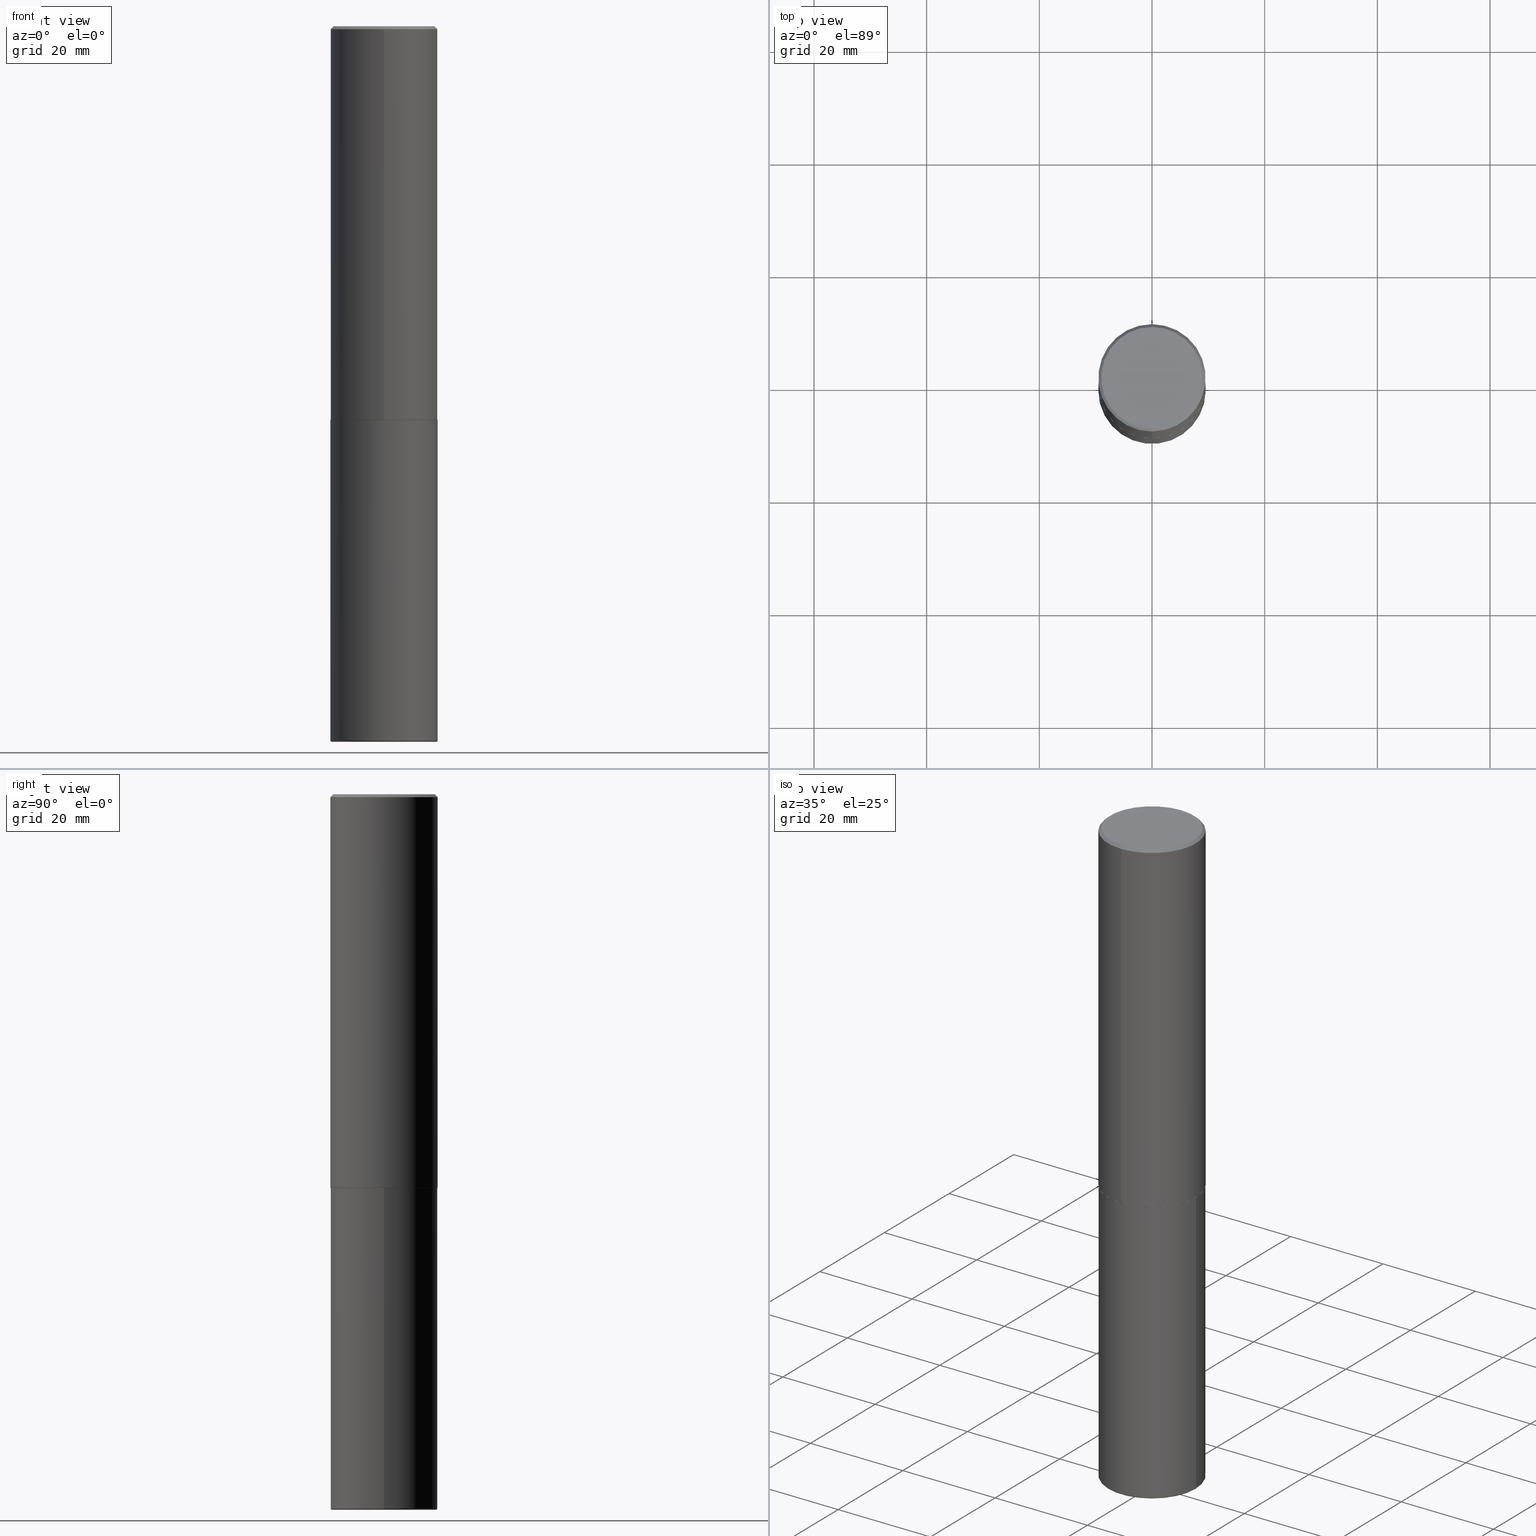
[diagram: canonical four-view strip — front | top / right | iso, engineering-drawing reading convention]
A machine part, canonical four-view strip (front | top / right | iso — engineering-drawing reading convention). The complete STEP part file that produces these views, byte-faithful:
ISO-10303-21;
HEADER;
FILE_DESCRIPTION (( 'STEP AP203' ),
    '1' );
FILE_NAME ('37639.STEP',
    '2024-03-02T06:34:33',
    ( '' ),
    ( '' ),
    'SwSTEP 2.0',
    'SolidWorks 2023',
    '' );
FILE_SCHEMA (( 'CONFIG_CONTROL_DESIGN' ));
ENDSEC;

DATA;
#1 = DIRECTION ( 'NONE',  ( -6.982962677686266711E-15, -1.000000000000000000, 3.490662795793665951E-15 ) ) ;
#2 = EDGE_LOOP ( 'NONE', ( #418, #225, #74, #356 ) ) ;
#3 = CIRCLE ( 'NONE', #283, 0.3549999999999999822 ) ;
#4 = CONICAL_SURFACE ( 'NONE', #95, 0.3739999999999999991, 0.7853981633977213939 ) ;
#5 = EDGE_LOOP ( 'NONE', ( #57, #343 ) ) ;
#6 = EDGE_LOOP ( 'NONE', ( #91, #151 ) ) ;
#7 = DIRECTION ( 'NONE',  ( -6.982962677686266711E-15, -1.000000000000000000, 2.921762560068730595E-15 ) ) ;
#8 = DIRECTION ( 'NONE',  ( -2.446040391741596045E-29, 3.490662795793665557E-15, 1.000000000000000000 ) ) ;
#9 = AXIS2_PLACEMENT_3D ( 'NONE', #332, #124, #162 ) ;
#10 = DIRECTION ( 'NONE',  ( -2.446040391741596606E-29, 3.490662795793665557E-15, 1.000000000000000000 ) ) ;
#11 = PLANE ( 'NONE',  #213 ) ;
#12 = CALENDAR_DATE ( 2024, 2, 3 ) ;
#13 = FACE_OUTER_BOUND ( 'NONE', #19, .T. ) ;
#14 = APPROVAL_ROLE ( '' ) ;
#15 = CIRCLE ( 'NONE', #93, 0.3750000000000000555 ) ;
#16 = DATE_AND_TIME ( #268, #250 ) ;
#17 = CC_DESIGN_APPROVAL ( #149, ( #256 ) ) ;
#18 = DIRECTION ( 'NONE',  ( -1.000000000000000000, 6.982962677686265922E-15, -4.876176775795935793E-29 ) ) ;
#19 = EDGE_LOOP ( 'NONE', ( #94, #210 ) ) ;
#20 = CIRCLE ( 'NONE', #370, 0.3549999999999999822 ) ;
#21 = CARTESIAN_POINT ( 'NONE',  ( 2.660982545421643429E-15, 0.3739999999999903957, -2.750000000000000888 ) ) ;
#22 = EDGE_CURVE ( 'NONE', #230, #90, #3, .T. ) ;
#23 = CARTESIAN_POINT ( 'NONE',  ( -2.504081769186608216E-15, -0.3549999999999999822, 1.285848347115290366E-15 ) ) ;
#24 = DIRECTION ( 'NONE',  ( 6.982962677686265922E-15, 1.000000000000000000, -3.494488891895536035E-15 ) ) ;
#25 = AXIS2_PLACEMENT_3D ( 'NONE', #413, #54, #381 ) ;
#26 = EDGE_LOOP ( 'NONE', ( #187, #192, #321, #111 ) ) ;
#27 = CARTESIAN_POINT ( 'NONE',  ( -0.3650000000000000466, -1.482901089530292947E-14, -4.990000000000000213 ) ) ;
#28 = VERTEX_POINT ( 'NONE', #37 ) ;
#29 = DIRECTION ( 'NONE',  ( -2.445468806185136597E-29, 3.491481338843145583E-15, 1.000000000000000000 ) ) ;
#30 = ADVANCED_FACE ( 'NONE', ( #110 ), #329, .F. ) ;
#31 = CARTESIAN_POINT ( 'NONE',  ( 2.618611004132350411E-15, 0.3749999999999999445, -0.02000000000000139513 ) ) ;
#32 = CIRCLE ( 'NONE', #163, 0.3750000000000000555 ) ;
#33 = VERTEX_POINT ( 'NONE', #161 ) ;
#34 = PRODUCT ( '37639', '37639', '', ( #139 ) ) ;
#35 = DIRECTION ( 'NONE',  ( 1.000000000000000000, -6.982962677686261189E-15, 0.000000000000000000 ) ) ;
#36 = CC_DESIGN_PERSON_AND_ORGANIZATION_ASSIGNMENT ( #243, #104, ( #34 ) ) ;
#37 = CARTESIAN_POINT ( 'NONE',  ( 0.3650000000000000466, -2.000618807157122291E-14, -5.000000000000000888 ) ) ;
#38 = FACE_OUTER_BOUND ( 'NONE', #184, .T. ) ;
#39 = CARTESIAN_POINT ( 'NONE',  ( -2.611628041454596160E-15, -0.3740000000000096581, -2.749999999999998668 ) ) ;
#40 = CARTESIAN_POINT ( 'NONE',  ( -2.572686749164323547E-15, -0.3750000000000001110, -0.01999999999999877570 ) ) ;
#41 = EDGE_LOOP ( 'NONE', ( #394, #393, #164, #96 ) ) ;
#42 = EDGE_CURVE ( 'NONE', #28, #324, #292, .T. ) ;
#43 = PERSON_AND_ORGANIZATION ( #172, #242 ) ;
#44 = APPROVAL_STATUS ( 'not_yet_approved' ) ;
#45 = CARTESIAN_POINT ( 'NONE',  ( 0.000000000000000000, 0.000000000000000000, 0.000000000000000000 ) ) ;
#46 = APPROVAL_DATE_TIME ( #168, #73 ) ;
#47 = CARTESIAN_POINT ( 'NONE',  ( 2.478951750578624209E-15, 0.3549999999999999822, -1.215853765202481601E-15 ) ) ;
#48 = LINE ( 'NONE', #58, #270 ) ;
#49 = AXIS2_PLACEMENT_3D ( 'NONE', #131, #167, #300 ) ;
#50 = AXIS2_PLACEMENT_3D ( 'NONE', #201, #10, #69 ) ;
#51 = PRODUCT_RELATED_PRODUCT_CATEGORY ( 'detail', '', ( #34 ) ) ;
#52 = CARTESIAN_POINT ( 'NONE',  ( -1.141397163745304909E-45, 1.628849886601155835E-31, 4.666305460853910467E-17 ) ) ;
#53 = DIRECTION ( 'NONE',  ( -2.446040391741596606E-29, 3.490662795793665557E-15, 1.000000000000000000 ) ) ;
#54 = DIRECTION ( 'NONE',  ( -2.445468806185136597E-29, 3.491481338843145583E-15, 1.000000000000000000 ) ) ;
#55 = VECTOR ( 'NONE', #205, 39.37007874015748143 ) ;
#56 = PRODUCT_DEFINITION_FORMATION_WITH_SPECIFIED_SOURCE ( 'ANY', '', #34, .NOT_KNOWN. ) ;
#57 = ORIENTED_EDGE ( 'NONE', *, *, #392, .F. ) ;
#58 = CARTESIAN_POINT ( 'NONE',  ( 2.664535259100376880E-15, 0.3750000000000002220, -1.308998548422625521E-15 ) ) ;
#59 = ADVANCED_FACE ( 'NONE', ( #13 ), #241, .F. ) ;
#60 = UNCERTAINTY_MEASURE_WITH_UNIT (LENGTH_MEASURE( 1.000000000000000082E-05 ), #264, 'distance_accuracy_value', 'NONE');
#61 = ORIENTED_EDGE ( 'NONE', *, *, #314, .T. ) ;
#62 = DIRECTION ( 'NONE',  ( -6.982962677686266711E-15, -1.000000000000000000, 2.921762560068730595E-15 ) ) ;
#63 = LINE ( 'NONE', #40, #177 ) ;
#64 = APPROVAL_PERSON_ORGANIZATION ( #43, #73, #339 ) ;
#65 = EDGE_CURVE ( 'NONE', #197, #389, #68, .T. ) ;
#66 = ORIENTED_EDGE ( 'NONE', *, *, #403, .F. ) ;
#67 = DIRECTION ( 'NONE',  ( -2.445468806185136597E-29, 3.491481338843145583E-15, 1.000000000000000000 ) ) ;
#68 = LINE ( 'NONE', #128, #103 ) ;
#69 = DIRECTION ( 'NONE',  ( -6.982962677686265922E-15, -1.000000000000000000, 3.494488891895536035E-15 ) ) ;
#70 = DIRECTION ( 'NONE',  ( -2.445468806185136597E-29, 3.491481338843145583E-15, 1.000000000000000000 ) ) ;
#71 = AXIS2_PLACEMENT_3D ( 'NONE', #231, #67, #191 ) ;
#72 = APPLICATION_PROTOCOL_DEFINITION ( 'international standard', 'config_control_design', 1994, #179 ) ;
#73 = APPROVAL ( #206, 'UNSPECIFIED' ) ;
#74 = ORIENTED_EDGE ( 'NONE', *, *, #42, .T. ) ;
#75 = APPLICATION_PROTOCOL_DEFINITION ( 'international standard', 'config_control_design', 1994, #155 ) ;
#76 = MANIFOLD_SOLID_BREP ( 'Body-Move/Copy2[1]', #278 ) ;
#77 = PERSON_AND_ORGANIZATION ( #172, #242 ) ;
#78 = EDGE_LOOP ( 'NONE', ( #255, #261 ) ) ;
#79 = CARTESIAN_POINT ( 'NONE',  ( 0.000000000000000000, 0.000000000000000000, 0.000000000000000000 ) ) ;
#80 = CC_DESIGN_DATE_AND_TIME_ASSIGNMENT ( #16, #246, ( #256 ) ) ;
#81 = LINE ( 'NONE', #150, #294 ) ;
#82 = CIRCLE ( 'NONE', #142, 0.3750000000000000555 ) ;
#83 = DIRECTION ( 'NONE',  ( -2.446040391741596606E-29, 3.490662795793665557E-15, 1.000000000000000000 ) ) ;
#84 = CARTESIAN_POINT ( 'NONE',  ( 6.725039217009124520E-29, -9.601573681818649859E-15, -2.750000000000000000 ) ) ;
#85 = VERTEX_POINT ( 'NONE', #396 ) ;
#86 = EDGE_CURVE ( 'NONE', #324, #318, #236, .T. ) ;
#87 = DIRECTION ( 'NONE',  ( 2.438088387897960049E-29, -3.491481338843145188E-15, -1.000000000000000000 ) ) ;
#88 = EDGE_LOOP ( 'NONE', ( #263, #220, #173, #408 ) ) ;
#89 = DIRECTION ( 'NONE',  ( -4.851104656540954809E-15, -0.7071067811865486830, -0.7071067811865463515 ) ) ;
#90 = VERTEX_POINT ( 'NONE', #331 ) ;
#91 = ORIENTED_EDGE ( 'NONE', *, *, #182, .T. ) ;
#92 = CYLINDRICAL_SURFACE ( 'NONE', #9, 0.3750000000000002220 ) ;
#93 = AXIS2_PLACEMENT_3D ( 'NONE', #222, #146, #282 ) ;
#94 = ORIENTED_EDGE ( 'NONE', *, *, #364, .F. ) ;
#95 = AXIS2_PLACEMENT_3D ( 'NONE', #362, #229, #7 ) ;
#96 = ORIENTED_EDGE ( 'NONE', *, *, #227, .F. ) ;
#97 = DIRECTION ( 'NONE',  ( -2.445468806185136597E-29, 3.491481338843145583E-15, 1.000000000000000000 ) ) ;
#98 = FACE_OUTER_BOUND ( 'NONE', #327, .T. ) ;
#99 = PERSON_AND_ORGANIZATION_ROLE ( 'classification_officer' ) ;
#100 = EDGE_CURVE ( 'NONE', #127, #197, #371, .T. ) ;
#101 = EDGE_LOOP ( 'NONE', ( #125, #341, #190, #291 ) ) ;
#102 = ADVANCED_BREP_SHAPE_REPRESENTATION ( '37639', ( #76, #208, #194 ), #215 ) ;
#103 = VECTOR ( 'NONE', #266, 39.37007874015748143 ) ;
#104 = PERSON_AND_ORGANIZATION_ROLE ( 'design_owner' ) ;
#105 = APPROVAL_DATE_TIME ( #308, #217 ) ;
#106 = ADVANCED_FACE ( 'NONE', ( #238 ), #11, .T. ) ;
#107 = COORDINATED_UNIVERSAL_TIME_OFFSET ( 5, 0, .BEHIND. ) ;
#108 = APPROVAL_STATUS ( 'not_yet_approved' ) ;
#109 = AXIS2_PLACEMENT_3D ( 'NONE', #388, #114, #349 ) ;
#110 = FACE_OUTER_BOUND ( 'NONE', #78, .T. ) ;
#111 = ORIENTED_EDGE ( 'NONE', *, *, #65, .F. ) ;
#112 = DIRECTION ( 'NONE',  ( 7.105427357601001859E-15, 1.000000000000000000, -3.491481338843145583E-15 ) ) ;
#113 = CIRCLE ( 'NONE', #360, 0.3750000000000000555 ) ;
#114 = DIRECTION ( 'NONE',  ( 2.446040391741596606E-29, -3.490662795793665557E-15, -1.000000000000000000 ) ) ;
#115 = CIRCLE ( 'NONE', #272, 0.3739999999999999991 ) ;
#116 = ADVANCED_FACE ( 'NONE', ( #98 ), #368, .T. ) ;
#117 = FACE_OUTER_BOUND ( 'NONE', #280, .T. ) ;
#118 = ORIENTED_EDGE ( 'NONE', *, *, #100, .F. ) ;
#119 = DIRECTION ( 'NONE',  ( -1.000000000000000000, 7.105427357601099677E-15, 0.000000000000000000 ) ) ;
#120 = ORIENTED_EDGE ( 'NONE', *, *, #154, .F. ) ;
#121 = FACE_OUTER_BOUND ( 'NONE', #303, .T. ) ;
#122 = AXIS2_PLACEMENT_3D ( 'NONE', #166, #156, #301 ) ;
#123 = ORIENTED_EDGE ( 'NONE', *, *, #385, .T. ) ;
#124 = DIRECTION ( 'NONE',  ( -2.446040391741596606E-29, 3.490662795793665557E-15, 1.000000000000000000 ) ) ;
#125 = ORIENTED_EDGE ( 'NONE', *, *, #314, .F. ) ;
#126 =( LENGTH_UNIT ( ) NAMED_UNIT ( * ) SI_UNIT ( $, .METRE. ) );
#127 = VERTEX_POINT ( 'NONE', #140 ) ;
#128 = CARTESIAN_POINT ( 'NONE',  ( -2.618611004132351594E-15, -0.3750000000000002220, 1.308998548422625521E-15 ) ) ;
#129 = AXIS2_PLACEMENT_3D ( 'NONE', #198, #391, #357 ) ;
#130 = FACE_OUTER_BOUND ( 'NONE', #41, .T. ) ;
#131 = CARTESIAN_POINT ( 'NONE',  ( 0.3650000000000000466, -1.997127325818278338E-14, -4.990000000000000213 ) ) ;
#132 = ADVANCED_FACE ( 'NONE', ( #277 ), #251, .T. ) ;
#133 = PERSON_AND_ORGANIZATION ( #172, #242 ) ;
#134 = ORIENTED_EDGE ( 'NONE', *, *, #392, .T. ) ;
#135 = CALENDAR_DATE ( 2024, 2, 3 ) ;
#136 = CIRCLE ( 'NONE', #129, 0.3739999999999999991 ) ;
#137 = SHAPE_DEFINITION_REPRESENTATION ( #273, #102 ) ;
#138 = EDGE_CURVE ( 'NONE', #253, #318, #32, .T. ) ;
#139 = MECHANICAL_CONTEXT ( 'NONE', #155, 'mechanical' ) ;
#140 = CARTESIAN_POINT ( 'NONE',  ( -2.611628041454596160E-15, -0.3740000000000096581, -2.749999999999998668 ) ) ;
#141 = CIRCLE ( 'NONE', #257, 0.01000000000000057614 ) ;
#142 = AXIS2_PLACEMENT_3D ( 'NONE', #226, #304, #296 ) ;
#143 = ORIENTED_EDGE ( 'NONE', *, *, #22, .F. ) ;
#144 = EDGE_CURVE ( 'NONE', #352, #298, #141, .T. ) ;
#145 = DIRECTION ( 'NONE',  ( 2.446040391741596606E-29, -3.490662795793665557E-15, -1.000000000000000000 ) ) ;
#146 = DIRECTION ( 'NONE',  ( -2.445468806185136597E-29, 3.491481338843145583E-15, 1.000000000000000000 ) ) ;
#147 = DIRECTION ( 'NONE',  ( -6.982962677686265922E-15, -1.000000000000000000, 2.913971193241877611E-15 ) ) ;
#148 = AXIS2_PLACEMENT_3D ( 'NONE', #152, #252, #1 ) ;
#149 = APPROVAL ( #44, 'UNSPECIFIED' ) ;
#150 = CARTESIAN_POINT ( 'NONE',  ( -0.3750000000000000555, 2.664535259100376091E-15, -1.844600658845589598E-29 ) ) ;
#151 = ORIENTED_EDGE ( 'NONE', *, *, #138, .T. ) ;
#152 = CARTESIAN_POINT ( 'NONE',  ( 0.000000000000000000, 0.000000000000000000, 0.000000000000000000 ) ) ;
#153 = ORIENTED_EDGE ( 'NONE', *, *, #364, .T. ) ;
#154 = EDGE_CURVE ( 'NONE', #324, #298, #15, .T. ) ;
#155 = APPLICATION_CONTEXT ( 'configuration controlled 3d designs of mechanical parts and assemblies' ) ;
#156 = DIRECTION ( 'NONE',  ( -2.445468806185136597E-29, 3.491481338843145583E-15, 1.000000000000000000 ) ) ;
#157 = VECTOR ( 'NONE', #258, 39.37007874015748143 ) ;
#158 = ORIENTED_EDGE ( 'NONE', *, *, #144, .T. ) ;
#159 = CARTESIAN_POINT ( 'NONE',  ( 1.220288934286383144E-28, -1.742249188082729666E-14, -4.990000000000000213 ) ) ;
#160 = ORIENTED_EDGE ( 'NONE', *, *, #397, .F. ) ;
#161 = CARTESIAN_POINT ( 'NONE',  ( 2.664535259100411196E-15, 0.3749999999999907296, -2.749000000000000998 ) ) ;
#162 = DIRECTION ( 'NONE',  ( -6.982962677686266711E-15, -1.000000000000000000, 3.490662795793665951E-15 ) ) ;
#163 = AXIS2_PLACEMENT_3D ( 'NONE', #218, #249, #380 ) ;
#164 = ORIENTED_EDGE ( 'NONE', *, *, #100, .T. ) ;
#165 = CIRCLE ( 'NONE', #25, 0.3650000000000000466 ) ;
#166 = CARTESIAN_POINT ( 'NONE',  ( 1.222734403092568523E-28, -1.745740669421573304E-14, -5.000000000000000888 ) ) ;
#167 = DIRECTION ( 'NONE',  ( -6.982962677686266711E-15, -1.000000000000000000, 3.491481338843145583E-15 ) ) ;
#168 = DATE_AND_TIME ( #402, #361 ) ;
#169 = APPROVAL_ROLE ( '' ) ;
#170 = CIRCLE ( 'NONE', #232, 0.3750000000000003886 ) ;
#171 = SECURITY_CLASSIFICATION ( '', '', #307 ) ;
#172 = PERSON ( 'UNSPECIFIED', 'UNSPECIFIED', 'UNSPECIFIED', ('UNSPECIFIED'), ('UNSPECIFIED'), ('UNSPECIFIED') ) ;
#173 = ORIENTED_EDGE ( 'NONE', *, *, #403, .T. ) ;
#174 = CALENDAR_DATE ( 2024, 2, 3 ) ;
#175 = DIRECTION ( 'NONE',  ( 6.982962677686265922E-15, 1.000000000000000000, -3.490662795793665557E-15 ) ) ;
#176 = CC_DESIGN_PERSON_AND_ORGANIZATION_ASSIGNMENT ( #342, #407, ( #56 ) ) ;
#177 = VECTOR ( 'NONE', #89, 39.37007874015748143 ) ;
#178 = CARTESIAN_POINT ( 'NONE',  ( 6.724165036897648492E-29, -9.595832025636787455E-15, -2.749000000000000110 ) ) ;
#179 = APPLICATION_CONTEXT ( 'configuration controlled 3d designs of mechanical parts and assemblies' ) ;
#180 = EDGE_CURVE ( 'NONE', #33, #85, #48, .T. ) ;
#181 = CARTESIAN_POINT ( 'NONE',  ( 2.657429831742841742E-15, 0.3739999999999903957, -2.750000000000000888 ) ) ;
#182 = EDGE_CURVE ( 'NONE', #318, #253, #113, .T. ) ;
#183 = CARTESIAN_POINT ( 'NONE',  ( -0.3750000000000000555, -1.084749752222259835E-14, -2.750000000000000000 ) ) ;
#184 = EDGE_LOOP ( 'NONE', ( #134, #158, #120, #233 ) ) ;
#185 = DIRECTION ( 'NONE',  ( 5.024295867789434219E-15, 0.7071067811867430830, 0.7071067811863519514 ) ) ;
#186 = CIRCLE ( 'NONE', #265, 0.3750000000000000555 ) ;
#187 = ORIENTED_EDGE ( 'NONE', *, *, #195, .T. ) ;
#188 = CARTESIAN_POINT ( 'NONE',  ( 6.725039217009124520E-29, -9.601573681818649859E-15, -2.750000000000000000 ) ) ;
#189 = CC_DESIGN_DATE_AND_TIME_ASSIGNMENT ( #207, #239, ( #171 ) ) ;
#190 = ORIENTED_EDGE ( 'NONE', *, *, #86, .T. ) ;
#191 = DIRECTION ( 'NONE',  ( 1.000000000000000000, -6.982962677686271444E-15, 4.883557194083115143E-29 ) ) ;
#192 = ORIENTED_EDGE ( 'NONE', *, *, #180, .T. ) ;
#193 = CARTESIAN_POINT ( 'NONE',  ( 6.726611077289389265E-29, -9.599322688432580971E-15, -2.750000000000000000 ) ) ;
#194 = AXIS2_PLACEMENT_3D ( 'NONE', #337, #372, #374 ) ;
#195 = EDGE_CURVE ( 'NONE', #197, #33, #170, .T. ) ;
#196 = DIRECTION ( 'NONE',  ( -2.446040391741596606E-29, 3.490662795793665557E-15, 1.000000000000000000 ) ) ;
#197 = VERTEX_POINT ( 'NONE', #254 ) ;
#198 = CARTESIAN_POINT ( 'NONE',  ( 6.726611077289389265E-29, -9.599322688432580971E-15, -2.750000000000000000 ) ) ;
#199 = ADVANCED_FACE ( 'NONE', ( #117 ), #319, .T. ) ;
#200 = DIRECTION ( 'NONE',  ( -2.445468806185136877E-29, 3.491481338843145188E-15, 1.000000000000000000 ) ) ;
#201 = CARTESIAN_POINT ( 'NONE',  ( 4.892080783483214581E-31, -6.981325591587361238E-17, -0.02000000000000008715 ) ) ;
#202 = CARTESIAN_POINT ( 'NONE',  ( 6.726611077289389265E-29, -9.599322688432580971E-15, -2.750000000000000000 ) ) ;
#203 = CONICAL_SURFACE ( 'NONE', #410, 0.3739999999999999991, 0.7853981633977213939 ) ;
#204 = APPROVAL_DATE_TIME ( #310, #149 ) ;
#205 = DIRECTION ( 'NONE',  ( -4.937700262165896205E-15, -0.7071067811867381980, 0.7071067811863568364 ) ) ;
#206 = APPROVAL_STATUS ( 'not_yet_approved' ) ;
#207 = DATE_AND_TIME ( #12, #302 ) ;
#208 = MANIFOLD_SOLID_BREP ( 'Body-Move/Copy2[2]', #313 ) ;
#209 = COORDINATED_UNIVERSAL_TIME_OFFSET ( 5, 0, .BEHIND. ) ;
#210 = ORIENTED_EDGE ( 'NONE', *, *, #415, .F. ) ;
#211 = DIRECTION ( 'NONE',  ( -2.445468806185136597E-29, 3.491481338843145583E-15, 1.000000000000000000 ) ) ;
#212 = DIMENSIONAL_EXPONENTS ( 1.000000000000000000, 0.000000000000000000, 0.000000000000000000, 0.000000000000000000, 0.000000000000000000, 0.000000000000000000, 0.000000000000000000 ) ;
#213 = AXIS2_PLACEMENT_3D ( 'NONE', #267, #399, #18 ) ;
#214 = AXIS2_PLACEMENT_3D ( 'NONE', #79, #29, #281 ) ;
#215 =( GEOMETRIC_REPRESENTATION_CONTEXT ( 3 ) GLOBAL_UNCERTAINTY_ASSIGNED_CONTEXT ( ( #60 ) ) GLOBAL_UNIT_ASSIGNED_CONTEXT ( ( #264, #328, #299 ) ) REPRESENTATION_CONTEXT ( 'NONE', 'WORKASPACE' ) );
#216 = DIRECTION ( 'NONE',  ( -2.445468806185136877E-29, 3.491481338843145188E-15, 1.000000000000000000 ) ) ;
#217 = APPROVAL ( #108, 'UNSPECIFIED' ) ;
#218 = CARTESIAN_POINT ( 'NONE',  ( 6.725039217009124520E-29, -9.601573681818649859E-15, -2.750000000000000000 ) ) ;
#219 = CARTESIAN_POINT ( 'NONE',  ( 0.3750000000000000555, -1.222018468595100145E-14, -2.750000000000000000 ) ) ;
#220 = ORIENTED_EDGE ( 'NONE', *, *, #240, .F. ) ;
#221 = VECTOR ( 'NONE', #200, 39.37007874015748143 ) ;
#222 = CARTESIAN_POINT ( 'NONE',  ( 1.220288934286383144E-28, -1.742249188082729666E-14, -4.990000000000000213 ) ) ;
#223 = VECTOR ( 'NONE', #185, 39.37007874015748143 ) ;
#224 = CC_DESIGN_APPROVAL ( #217, ( #171 ) ) ;
#225 = ORIENTED_EDGE ( 'NONE', *, *, #288, .T. ) ;
#226 = CARTESIAN_POINT ( 'NONE',  ( 4.892080783483214581E-31, -6.981325591587361238E-17, -0.02000000000000008715 ) ) ;
#227 = EDGE_CURVE ( 'NONE', #33, #197, #284, .T. ) ;
#228 = ORIENTED_EDGE ( 'NONE', *, *, #180, .F. ) ;
#229 = DIRECTION ( 'NONE',  ( -2.446040391741596606E-29, 3.490662795793665557E-15, 1.000000000000000000 ) ) ;
#230 = VERTEX_POINT ( 'NONE', #23 ) ;
#231 = CARTESIAN_POINT ( 'NONE',  ( 1.220288934286383144E-28, -1.742249188082729666E-14, -4.990000000000000213 ) ) ;
#232 = AXIS2_PLACEMENT_3D ( 'NONE', #178, #53, #316 ) ;
#233 = ORIENTED_EDGE ( 'NONE', *, *, #42, .F. ) ;
#234 = ADVANCED_FACE ( 'NONE', ( #285 ), #322, .F. ) ;
#235 = CARTESIAN_POINT ( 'NONE',  ( -2.572686749164323547E-15, -0.3750000000000001110, -0.01999999999999877570 ) ) ;
#236 = LINE ( 'NONE', #366, #221 ) ;
#237 = DIRECTION ( 'NONE',  ( -6.982962677686266711E-15, -1.000000000000000000, 2.921762560068730595E-15 ) ) ;
#238 = FACE_OUTER_BOUND ( 'NONE', #5, .T. ) ;
#239 = DATE_TIME_ROLE ( 'classification_date' ) ;
#240 = EDGE_CURVE ( 'NONE', #90, #230, #20, .T. ) ;
#241 = PLANE ( 'NONE',  #409 ) ;
#242 = ORGANIZATION ( 'UNSPECIFIED', 'UNSPECIFIED', '' ) ;
#243 = PERSON_AND_ORGANIZATION ( #172, #242 ) ;
#244 = AXIS2_PLACEMENT_3D ( 'NONE', #47, #412, #175 ) ;
#245 = ADVANCED_FACE ( 'NONE', ( #355 ), #386, .T. ) ;
#246 = DATE_TIME_ROLE ( 'creation_date' ) ;
#247 = DIRECTION ( 'NONE',  ( -2.446040391741596606E-29, 3.490662795793665557E-15, 1.000000000000000000 ) ) ;
#248 = DIRECTION ( 'NONE',  ( -2.446040391741596606E-29, 3.490662795793665557E-15, 1.000000000000000000 ) ) ;
#249 = DIRECTION ( 'NONE',  ( -2.445468806185136597E-29, 3.491481338843145583E-15, 1.000000000000000000 ) ) ;
#250 = LOCAL_TIME ( 1, 34, 33.00000000000000000, #375 ) ;
#251 = CYLINDRICAL_SURFACE ( 'NONE', #214, 0.3750000000000000555 ) ;
#252 = DIRECTION ( 'NONE',  ( -2.446040391741596606E-29, 3.490662795793665557E-15, 1.000000000000000000 ) ) ;
#253 = VERTEX_POINT ( 'NONE', #183 ) ;
#254 = CARTESIAN_POINT ( 'NONE',  ( -2.618611004132284935E-15, -0.3750000000000099920, -2.748999999999999222 ) ) ;
#255 = ORIENTED_EDGE ( 'NONE', *, *, #240, .T. ) ;
#256 = PRODUCT_DEFINITION ( 'UNKNOWN', '', #56, #260 ) ;
#257 = AXIS2_PLACEMENT_3D ( 'NONE', #27, #112, #119 ) ;
#258 = DIRECTION ( 'NONE',  ( 4.937700262164538576E-15, 0.7071067811865437980, -0.7071067811865512365 ) ) ;
#259 = AXIS2_PLACEMENT_3D ( 'NONE', #188, #87, #315 ) ;
#260 = DESIGN_CONTEXT ( 'detailed design', #179, 'design' ) ;
#261 = ORIENTED_EDGE ( 'NONE', *, *, #22, .T. ) ;
#262 = CARTESIAN_POINT ( 'NONE',  ( 6.726611077289389265E-29, -9.599322688432580971E-15, -2.750000000000000000 ) ) ;
#263 = ORIENTED_EDGE ( 'NONE', *, *, #385, .F. ) ;
#264 =( CONVERSION_BASED_UNIT ( 'INCH', #359 ) LENGTH_UNIT ( ) NAMED_UNIT ( #212 ) );
#265 = AXIS2_PLACEMENT_3D ( 'NONE', #323, #97, #35 ) ;
#266 = DIRECTION ( 'NONE',  ( -2.446040391741596606E-29, 3.490662795793665557E-15, 1.000000000000000000 ) ) ;
#267 = CARTESIAN_POINT ( 'NONE',  ( 1.774526178394363037E-29, -3.242643679648566706E-14, -5.000000000000000000 ) ) ;
#268 = CALENDAR_DATE ( 2024, 2, 3 ) ;
#269 = VERTEX_POINT ( 'NONE', #21 ) ;
#270 = VECTOR ( 'NONE', #248, 39.37007874015748143 ) ;
#271 = CIRCLE ( 'NONE', #50, 0.3750000000000000555 ) ;
#272 = AXIS2_PLACEMENT_3D ( 'NONE', #262, #293, #62 ) ;
#273 = PRODUCT_DEFINITION_SHAPE ( 'NONE', 'NONE',  #256 ) ;
#274 = COORDINATED_UNIVERSAL_TIME_OFFSET ( 5, 0, .BEHIND. ) ;
#275 = ADVANCED_FACE ( 'NONE', ( #290 ), #354, .T. ) ;
#276 = PERSON_AND_ORGANIZATION ( #172, #242 ) ;
#277 = FACE_OUTER_BOUND ( 'NONE', #101, .T. ) ;
#278 = CLOSED_SHELL ( 'NONE', ( #116, #373, #234, #132, #334, #106 ) ) ;
#279 = AXIS2_PLACEMENT_3D ( 'NONE', #384, #317, #147 ) ;
#280 = EDGE_LOOP ( 'NONE', ( #143, #123, #305, #66 ) ) ;
#281 = DIRECTION ( 'NONE',  ( 1.000000000000000000, -6.982962677686265922E-15, 4.876176775795935793E-29 ) ) ;
#282 = DIRECTION ( 'NONE',  ( 1.000000000000000000, -6.982962677686261189E-15, 0.000000000000000000 ) ) ;
#283 = AXIS2_PLACEMENT_3D ( 'NONE', #363, #247, #401 ) ;
#284 = CIRCLE ( 'NONE', #279, 0.3750000000000003886 ) ;
#285 = FACE_OUTER_BOUND ( 'NONE', #6, .T. ) ;
#286 = ORIENTED_EDGE ( 'NONE', *, *, #227, .T. ) ;
#287 = CARTESIAN_POINT ( 'NONE',  ( -0.3750000000000003886, -1.475795662172691781E-14, -4.990000000000000213 ) ) ;
#288 = EDGE_CURVE ( 'NONE', #352, #28, #165, .T. ) ;
#289 = EDGE_LOOP ( 'NONE', ( #228, #286, #358, #160 ) ) ;
#290 = FACE_OUTER_BOUND ( 'NONE', #88, .T. ) ;
#291 = ORIENTED_EDGE ( 'NONE', *, *, #138, .F. ) ;
#292 = CIRCLE ( 'NONE', #49, 0.01000000000000057614 ) ;
#293 = DIRECTION ( 'NONE',  ( -2.446040391741596606E-29, 3.490662795793665557E-15, 1.000000000000000000 ) ) ;
#294 = VECTOR ( 'NONE', #216, 39.37007874015748143 ) ;
#295 = ORIENTED_EDGE ( 'NONE', *, *, #182, .F. ) ;
#296 = DIRECTION ( 'NONE',  ( -6.982962677686265922E-15, -1.000000000000000000, 3.494488891895536035E-15 ) ) ;
#297 = CC_DESIGN_PERSON_AND_ORGANIZATION_ASSIGNMENT ( #276, #400, ( #256 ) ) ;
#298 = VERTEX_POINT ( 'NONE', #287 ) ;
#299 =( NAMED_UNIT ( * ) SI_UNIT ( $, .STERADIAN. ) SOLID_ANGLE_UNIT ( ) );
#300 = DIRECTION ( 'NONE',  ( 1.000000000000000000, -6.982962677686124716E-15, 0.000000000000000000 ) ) ;
#301 = DIRECTION ( 'NONE',  ( 1.000000000000000000, -6.982962677686270655E-15, 0.000000000000000000 ) ) ;
#302 = LOCAL_TIME ( 1, 34, 33.00000000000000000, #209 ) ;
#303 = EDGE_LOOP ( 'NONE', ( #153, #378, #387, #118 ) ) ;
#304 = DIRECTION ( 'NONE',  ( -2.446040391741596606E-29, 3.490662795793665557E-15, 1.000000000000000000 ) ) ;
#305 = ORIENTED_EDGE ( 'NONE', *, *, #406, .T. ) ;
#306 = CC_DESIGN_PERSON_AND_ORGANIZATION_ASSIGNMENT ( #77, #377, ( #56 ) ) ;
#307 = SECURITY_CLASSIFICATION_LEVEL ( 'unclassified' ) ;
#308 = DATE_AND_TIME ( #135, #383 ) ;
#309 = APPROVAL_PERSON_ORGANIZATION ( #133, #149, #169 ) ;
#310 = DATE_AND_TIME ( #174, #382 ) ;
#311 = DIRECTION ( 'NONE',  ( 1.000000000000000000, -6.982962677686265922E-15, 4.876176775795935793E-29 ) ) ;
#312 = DIRECTION ( 'NONE',  ( -6.982962677686265922E-15, -1.000000000000000000, 3.490662795793665557E-15 ) ) ;
#313 = CLOSED_SHELL ( 'NONE', ( #411, #379, #199, #275, #245, #348, #59, #30 ) ) ;
#314 = EDGE_CURVE ( 'NONE', #298, #253, #81, .T. ) ;
#315 = DIRECTION ( 'NONE',  ( -1.000000000000000000, 6.982962677686265922E-15, -4.876176775795935793E-29 ) ) ;
#316 = DIRECTION ( 'NONE',  ( -6.982962677686265922E-15, -1.000000000000000000, 2.913971193241877611E-15 ) ) ;
#317 = DIRECTION ( 'NONE',  ( -2.446040391741596606E-29, 3.490662795793665557E-15, 1.000000000000000000 ) ) ;
#318 = VERTEX_POINT ( 'NONE', #219 ) ;
#319 = CONICAL_SURFACE ( 'NONE', #109, 0.3750000000000000555, 0.7853981633974465026 ) ;
#320 = FACE_OUTER_BOUND ( 'NONE', #2, .T. ) ;
#321 = ORIENTED_EDGE ( 'NONE', *, *, #406, .F. ) ;
#322 = PLANE ( 'NONE',  #259 ) ;
#323 = CARTESIAN_POINT ( 'NONE',  ( 1.220288934286383144E-28, -1.742249188082729666E-14, -4.990000000000000213 ) ) ;
#324 = VERTEX_POINT ( 'NONE', #351 ) ;
#325 = EDGE_CURVE ( 'NONE', #269, #33, #347, .T. ) ;
#326 = LINE ( 'NONE', #31, #157 ) ;
#327 = EDGE_LOOP ( 'NONE', ( #417, #61, #295, #335 ) ) ;
#328 =( NAMED_UNIT ( * ) PLANE_ANGLE_UNIT ( ) SI_UNIT ( $, .RADIAN. ) );
#329 = PLANE ( 'NONE',  #244 ) ;
#330 = DIRECTION ( 'NONE',  ( -2.445468806185136597E-29, 3.491481338843145583E-15, 1.000000000000000000 ) ) ;
#331 = CARTESIAN_POINT ( 'NONE',  ( 2.548781377355487113E-15, 0.3549999999999999822, -1.192522237898212341E-15 ) ) ;
#332 = CARTESIAN_POINT ( 'NONE',  ( 0.000000000000000000, 0.000000000000000000, 0.000000000000000000 ) ) ;
#333 = APPROVAL_PERSON_ORGANIZATION ( #369, #217, #14 ) ;
#334 = ADVANCED_FACE ( 'NONE', ( #320 ), #345, .T. ) ;
#335 = ORIENTED_EDGE ( 'NONE', *, *, #86, .F. ) ;
#336 = COORDINATED_UNIVERSAL_TIME_OFFSET ( 5, 0, .BEHIND. ) ;
#337 = CARTESIAN_POINT ( 'NONE',  ( 0.000000000000000000, 0.000000000000000000, 0.000000000000000000 ) ) ;
#338 = CC_DESIGN_PERSON_AND_ORGANIZATION_ASSIGNMENT ( #405, #99, ( #171 ) ) ;
#339 = APPROVAL_ROLE ( '' ) ;
#340 = CC_DESIGN_APPROVAL ( #73, ( #56 ) ) ;
#341 = ORIENTED_EDGE ( 'NONE', *, *, #350, .T. ) ;
#342 = PERSON_AND_ORGANIZATION ( #172, #242 ) ;
#343 = ORIENTED_EDGE ( 'NONE', *, *, #288, .F. ) ;
#344 = DIRECTION ( 'NONE',  ( 1.000000000000000000, -6.982962677686266711E-15, 0.000000000000000000 ) ) ;
#345 = TOROIDAL_SURFACE ( 'NONE', #71, 0.3650000000000000466, 0.01000000000000061083 ) ;
#346 = CC_DESIGN_SECURITY_CLASSIFICATION ( #171, ( #56 ) ) ;
#347 = LINE ( 'NONE', #181, #223 ) ;
#348 = ADVANCED_FACE ( 'NONE', ( #130 ), #203, .T. ) ;
#349 = DIRECTION ( 'NONE',  ( 6.982962677686265922E-15, 1.000000000000000000, -3.494488891895536035E-15 ) ) ;
#350 = EDGE_CURVE ( 'NONE', #298, #324, #186, .T. ) ;
#351 = CARTESIAN_POINT ( 'NONE',  ( 0.3750000000000003886, -2.004110288495964667E-14, -4.990000000000000213 ) ) ;
#352 = VERTEX_POINT ( 'NONE', #367 ) ;
#353 = AXIS2_PLACEMENT_3D ( 'NONE', #45, #70, #311 ) ;
#354 = CONICAL_SURFACE ( 'NONE', #395, 0.3750000000000000555, 0.7853981633974465026 ) ;
#355 = FACE_OUTER_BOUND ( 'NONE', #289, .T. ) ;
#356 = ORIENTED_EDGE ( 'NONE', *, *, #350, .F. ) ;
#357 = DIRECTION ( 'NONE',  ( -6.982962677686266711E-15, -1.000000000000000000, 2.921762560068730595E-15 ) ) ;
#358 = ORIENTED_EDGE ( 'NONE', *, *, #65, .T. ) ;
#359 = LENGTH_MEASURE_WITH_UNIT ( LENGTH_MEASURE( 0.02539999999999999897 ), #126 );
#360 = AXIS2_PLACEMENT_3D ( 'NONE', #84, #211, #344 ) ;
#361 = LOCAL_TIME ( 1, 34, 33.00000000000000000, #336 ) ;
#362 = CARTESIAN_POINT ( 'NONE',  ( 6.726611077289389265E-29, -9.599322688432580971E-15, -2.750000000000000000 ) ) ;
#363 = CARTESIAN_POINT ( 'NONE',  ( -1.141397163745304909E-45, 1.628849886601155835E-31, 4.666305460853910467E-17 ) ) ;
#364 = EDGE_CURVE ( 'NONE', #127, #269, #136, .T. ) ;
#365 = DIRECTION ( 'NONE',  ( 1.000000000000000000, -6.982962677686271444E-15, 4.883557194083115143E-29 ) ) ;
#366 = CARTESIAN_POINT ( 'NONE',  ( 0.3750000000000000555, -2.618611004132350016E-15, 1.828566290923476203E-29 ) ) ;
#367 = CARTESIAN_POINT ( 'NONE',  ( -0.3650000000000000466, -1.481094116520914498E-14, -5.000000000000000888 ) ) ;
#368 = CYLINDRICAL_SURFACE ( 'NONE', #353, 0.3750000000000000555 ) ;
#369 = PERSON_AND_ORGANIZATION ( #172, #242 ) ;
#370 = AXIS2_PLACEMENT_3D ( 'NONE', #52, #83, #416 ) ;
#371 = LINE ( 'NONE', #39, #55 ) ;
#372 = DIRECTION ( 'NONE',  ( 0.000000000000000000, 0.000000000000000000, 1.000000000000000000 ) ) ;
#373 = ADVANCED_FACE ( 'NONE', ( #38 ), #404, .T. ) ;
#374 = DIRECTION ( 'NONE',  ( 1.000000000000000000, 0.000000000000000000, 0.000000000000000000 ) ) ;
#375 = COORDINATED_UNIVERSAL_TIME_OFFSET ( 5, 0, .BEHIND. ) ;
#376 = AXIS2_PLACEMENT_3D ( 'NONE', #159, #330, #365 ) ;
#377 = PERSON_AND_ORGANIZATION_ROLE ( 'design_supplier' ) ;
#378 = ORIENTED_EDGE ( 'NONE', *, *, #325, .T. ) ;
#379 = ADVANCED_FACE ( 'NONE', ( #398 ), #92, .T. ) ;
#380 = DIRECTION ( 'NONE',  ( 1.000000000000000000, -6.982962677686266711E-15, 0.000000000000000000 ) ) ;
#381 = DIRECTION ( 'NONE',  ( 1.000000000000000000, -6.982962677686270655E-15, 0.000000000000000000 ) ) ;
#382 = LOCAL_TIME ( 1, 34, 33.00000000000000000, #107 ) ;
#383 = LOCAL_TIME ( 1, 34, 33.00000000000000000, #274 ) ;
#384 = CARTESIAN_POINT ( 'NONE',  ( 6.724165036897648492E-29, -9.595832025636787455E-15, -2.749000000000000110 ) ) ;
#385 = EDGE_CURVE ( 'NONE', #230, #389, #63, .T. ) ;
#386 = CYLINDRICAL_SURFACE ( 'NONE', #148, 0.3750000000000002220 ) ;
#387 = ORIENTED_EDGE ( 'NONE', *, *, #195, .F. ) ;
#388 = CARTESIAN_POINT ( 'NONE',  ( 4.892080783483214581E-31, -6.981325591587361238E-17, -0.02000000000000008715 ) ) ;
#389 = VERTEX_POINT ( 'NONE', #235 ) ;
#390 = CIRCLE ( 'NONE', #122, 0.3650000000000000466 ) ;
#391 = DIRECTION ( 'NONE',  ( -2.446040391741596606E-29, 3.490662795793665557E-15, 1.000000000000000000 ) ) ;
#392 = EDGE_CURVE ( 'NONE', #28, #352, #390, .T. ) ;
#393 = ORIENTED_EDGE ( 'NONE', *, *, #415, .T. ) ;
#394 = ORIENTED_EDGE ( 'NONE', *, *, #325, .F. ) ;
#395 = AXIS2_PLACEMENT_3D ( 'NONE', #414, #145, #24 ) ;
#396 = CARTESIAN_POINT ( 'NONE',  ( 2.618611004132350411E-15, 0.3749999999999999445, -0.02000000000000139513 ) ) ;
#397 = EDGE_CURVE ( 'NONE', #85, #389, #271, .T. ) ;
#398 = FACE_OUTER_BOUND ( 'NONE', #26, .T. ) ;
#399 = DIRECTION ( 'NONE',  ( 2.438088387897960049E-29, -3.491481338843145188E-15, -1.000000000000000000 ) ) ;
#400 = PERSON_AND_ORGANIZATION_ROLE ( 'creator' ) ;
#401 = DIRECTION ( 'NONE',  ( -6.982962677686265922E-15, -1.000000000000000000, 3.490662795793665557E-15 ) ) ;
#402 = CALENDAR_DATE ( 2024, 2, 3 ) ;
#403 = EDGE_CURVE ( 'NONE', #90, #85, #326, .T. ) ;
#404 = TOROIDAL_SURFACE ( 'NONE', #376, 0.3650000000000000466, 0.01000000000000061083 ) ;
#405 = PERSON_AND_ORGANIZATION ( #172, #242 ) ;
#406 = EDGE_CURVE ( 'NONE', #389, #85, #82, .T. ) ;
#407 = PERSON_AND_ORGANIZATION_ROLE ( 'creator' ) ;
#408 = ORIENTED_EDGE ( 'NONE', *, *, #397, .T. ) ;
#409 = AXIS2_PLACEMENT_3D ( 'NONE', #202, #8, #312 ) ;
#410 = AXIS2_PLACEMENT_3D ( 'NONE', #193, #196, #237 ) ;
#411 = ADVANCED_FACE ( 'NONE', ( #121 ), #4, .T. ) ;
#412 = DIRECTION ( 'NONE',  ( 2.446040391741596045E-29, -3.490662795793665557E-15, -1.000000000000000000 ) ) ;
#413 = CARTESIAN_POINT ( 'NONE',  ( 1.222734403092568523E-28, -1.745740669421573304E-14, -5.000000000000000888 ) ) ;
#414 = CARTESIAN_POINT ( 'NONE',  ( 4.892080783483214581E-31, -6.981325591587361238E-17, -0.02000000000000008715 ) ) ;
#415 = EDGE_CURVE ( 'NONE', #269, #127, #115, .T. ) ;
#416 = DIRECTION ( 'NONE',  ( -6.982962677686265922E-15, -1.000000000000000000, 3.490662795793665557E-15 ) ) ;
#417 = ORIENTED_EDGE ( 'NONE', *, *, #154, .T. ) ;
#418 = ORIENTED_EDGE ( 'NONE', *, *, #144, .F. ) ;
ENDSEC;
END-ISO-10303-21;
